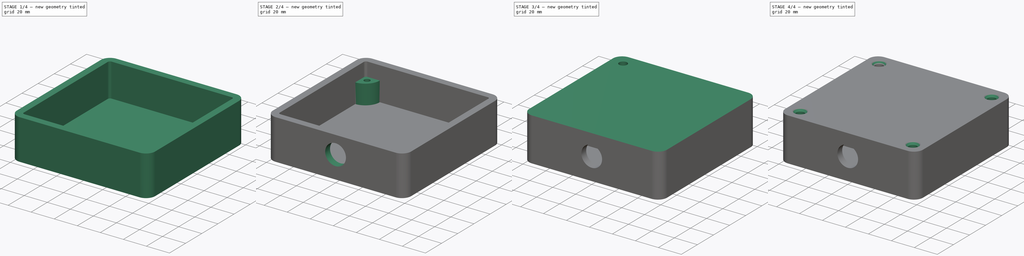
[diagram: build sequence overview — one tinted view per stage of 4, left to right]
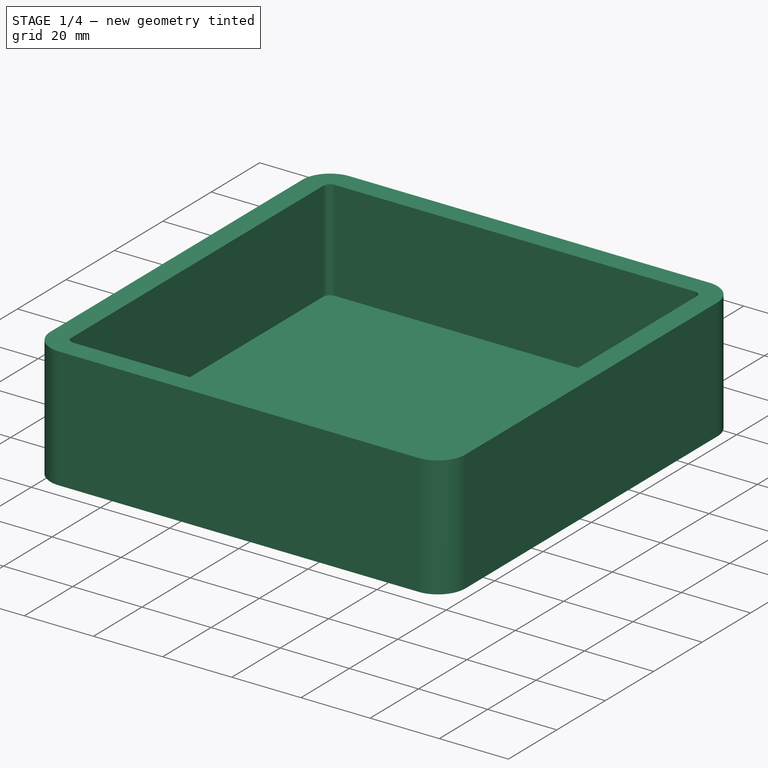
[diagram: stage 1 of 4 — iso view after this stage's code; geometry added in this stage tinted green]
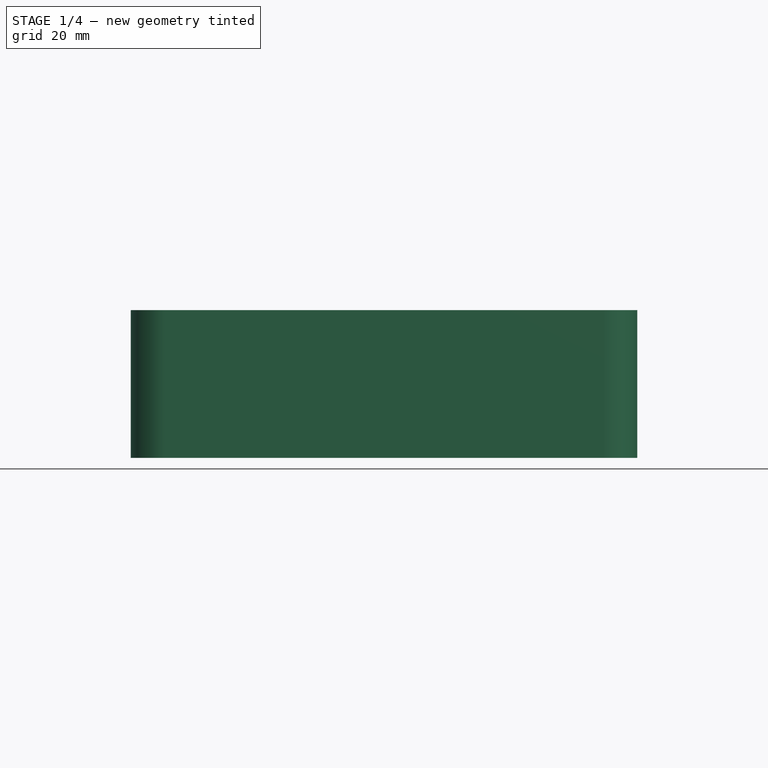
[diagram: stage 1 of 4 — front view after this stage's code; geometry added in this stage tinted green]
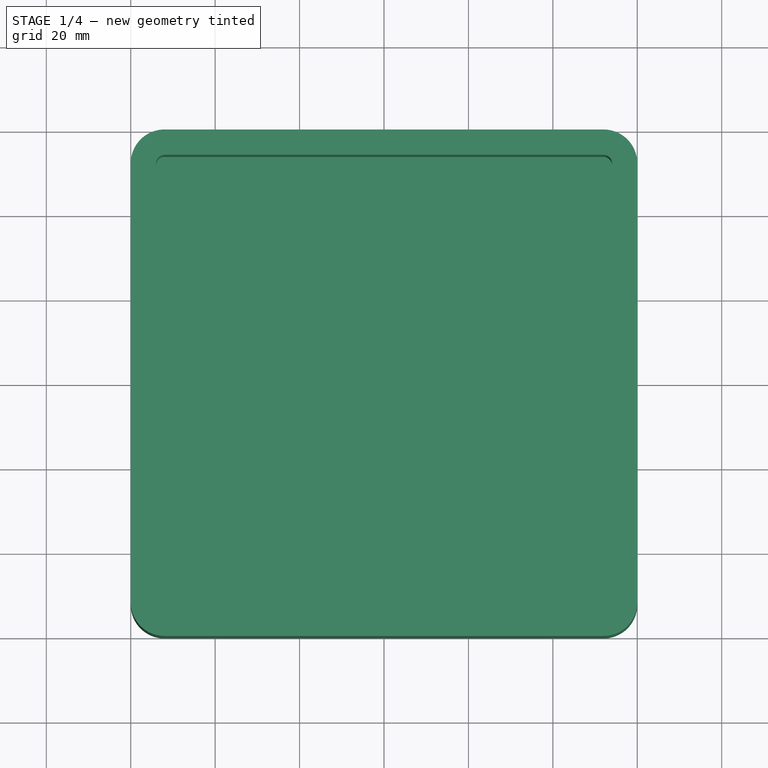
[diagram: stage 1 of 4 — top view after this stage's code; geometry added in this stage tinted green]
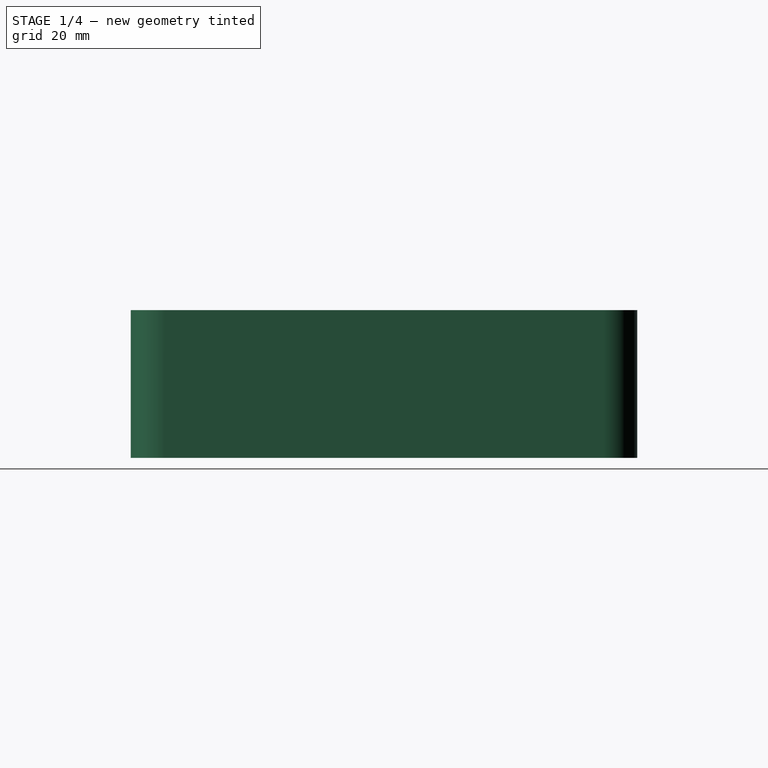
[diagram: stage 1 of 4 — right view after this stage's code; geometry added in this stage tinted green]
FCSTD DOCUMENT  (FreeCAD 0.19R24276 (Git))
Label: Container_tutorial_v2
License: All rights reserved
LicenseURL: http://en.wikipedia.org/wiki/All_rights_reserved
objects: Sketcher::SketchObject×8, PartDesign::Pad×4, PartDesign::Mirrored×4, PartDesign::Pocket×2, PartDesign::MultiTransform×2, PartDesign::Body×2, Spreadsheet::Sheet×1, PartDesign::Chamfer×1, PartDesign::Hole×1
note: 32 computed .brp shape members not serialized (recipe doc carries the construction recipe); baked Part::Feature solids carry a one-line shape summary decoded from their .brp

FEATURE [Sketcher::SketchObject] Sketch
  FullyConstrained = true
  MapMode = 5
  Support = -> [XY_Plane]
  expr: Constraints[18] = <<Parameters>>.outside_radius
  expr: Constraints[17] = <<Parameters>>.box_widht
  expr: Constraints[16] = <<Parameters>>.box_length
  sketch-geometry (8):
    g0: LineSegment StartX=-52 StartY=60 StartZ=0 EndX=52 EndY=60 EndZ=0
    g1: LineSegment StartX=60 StartY=52 StartZ=0 EndX=60 EndY=-52 EndZ=0
    g2: LineSegment StartX=52 StartY=-60 StartZ=0 EndX=-52 EndY=-60 EndZ=0
    g3: LineSegment StartX=-60 StartY=-52 StartZ=0 EndX=-60 EndY=52 EndZ=0
    g4: ArcOfCircle CenterX=-52 CenterY=52 CenterZ=0 NormalX=0 NormalY=0 NormalZ=1 AngleXU=0 Radius=8 StartAngle=1.5708 EndAngle=3.14159
    g5: ArcOfCircle CenterX=-52 CenterY=-52 CenterZ=0 NormalX=0 NormalY=0 NormalZ=1 AngleXU=0 Radius=8 StartAngle=3.14159 EndAngle=4.71239
    g6: ArcOfCircle CenterX=52 CenterY=-52 CenterZ=0 NormalX=0 NormalY=0 NormalZ=1 AngleXU=0 Radius=8 StartAngle=4.71239 EndAngle=6.28319
    g7: ArcOfCircle CenterX=52 CenterY=52 CenterZ=0 NormalX=0 NormalY=0 NormalZ=1 AngleXU=0 Radius=8 StartAngle=2.59e-14 EndAngle=1.5708
  constraints (19):
    c: Horizontal(g0)
    c: Horizontal(g2)
    c: Vertical(g1)
    c: Vertical(g3)
    c: Tangent(g0,g4) = 1.5708
    c: Tangent(g3,g4) = 1.5708
    c: Tangent(g3,g5) = 1.5708
    c: Tangent(g2,g5) = 1.5708
    c: Tangent(g1,g6) = 1.5708
    c: Tangent(g2,g6) = 1.5708
    c: Tangent(g0,g7) = 1.5708
    c: Tangent(g1,g7) = 1.5708
    c: Symmetric(g4,g6,g-1)
    c: Equal(g4,g5)
    c: Equal(g5,g7)
    c: Equal(g7,g6)
    c: DistanceX(g3,g1) = 120
    c: DistanceY(g2,g0) = 120
    c: Radius(g4) = 8
FEATURE [PartDesign::Pad] Pad
  Direction = (1,1,1)
  Length = 35
  Length2 = 100
  Profile = -> Sketch
  Type = 0
  expr: Length = <<Parameters>>.box_heigth
FEATURE [PartDesign::Body] Body001  label="Lid"
  Group = -> [Sketch005,Pad002,Sketch006,Pad003,Sketch007,Pocket001,MultiTransform001,Mirrored002,Mirrored003,Chamfer]
  Origin = -> Origin001
  Placement = pos=(0,0,50) rot=(0,0,1;0rad)
  Tip = -> Chamfer
FEATURE [PartDesign::Mirrored] Mirrored001
  MirrorPlane = -> Sketch002 [H_Axis]
FEATURE [PartDesign::Mirrored] Mirrored
  MirrorPlane = -> Sketch002 [V_Axis]
FEATURE [PartDesign::Pocket] Pocket
  BaseFeature = -> Pad
  Length = 29
  Length2 = 100
  Profile = -> Sketch001
  Type = 0
  expr: Length = <<Parameters>>.box_heigth - <<Parameters>>.box_wall_thickness
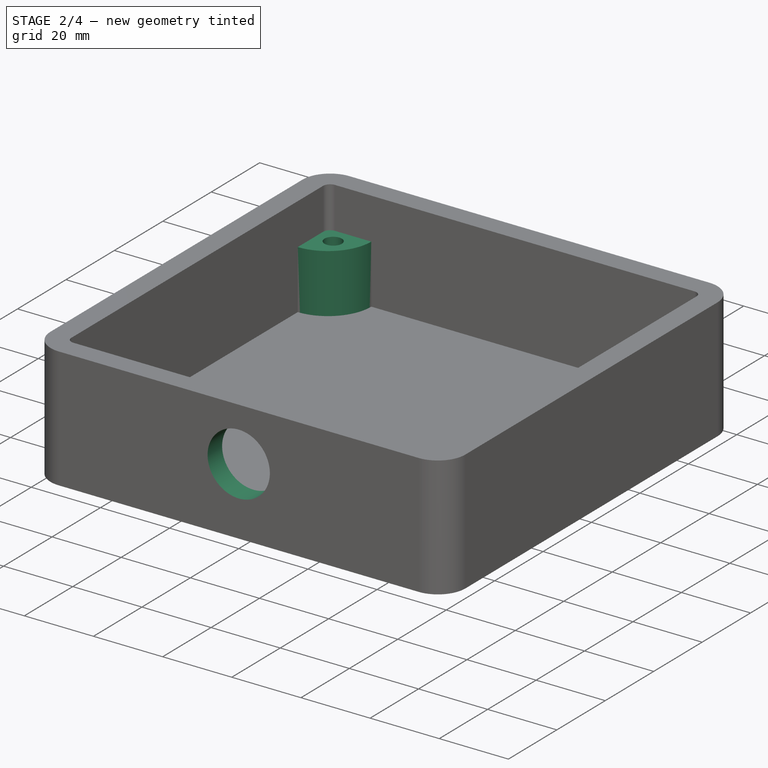
[diagram: stage 2 of 4 — iso view after this stage's code; geometry added in this stage tinted green]
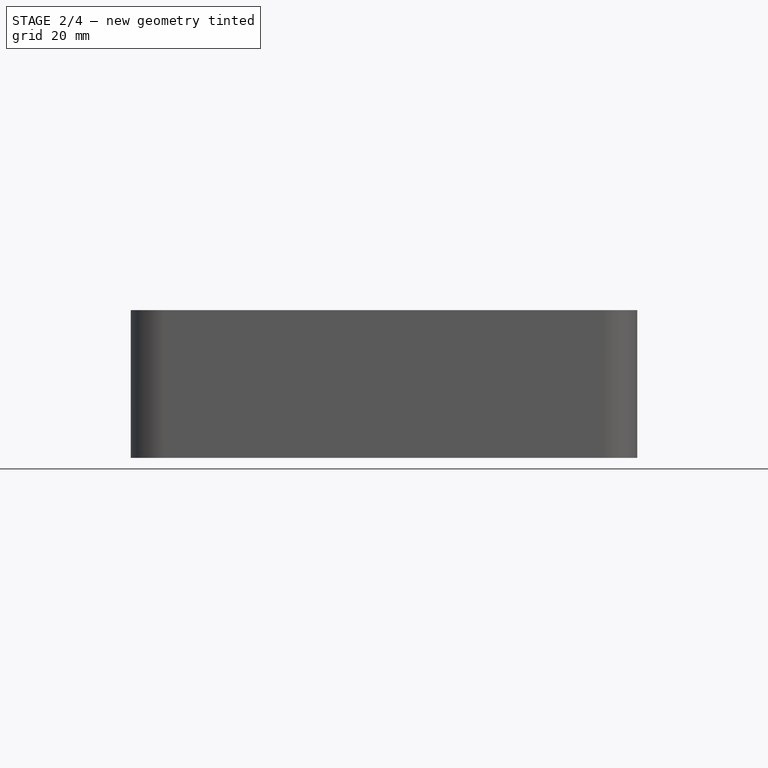
[diagram: stage 2 of 4 — front view after this stage's code; geometry added in this stage tinted green]
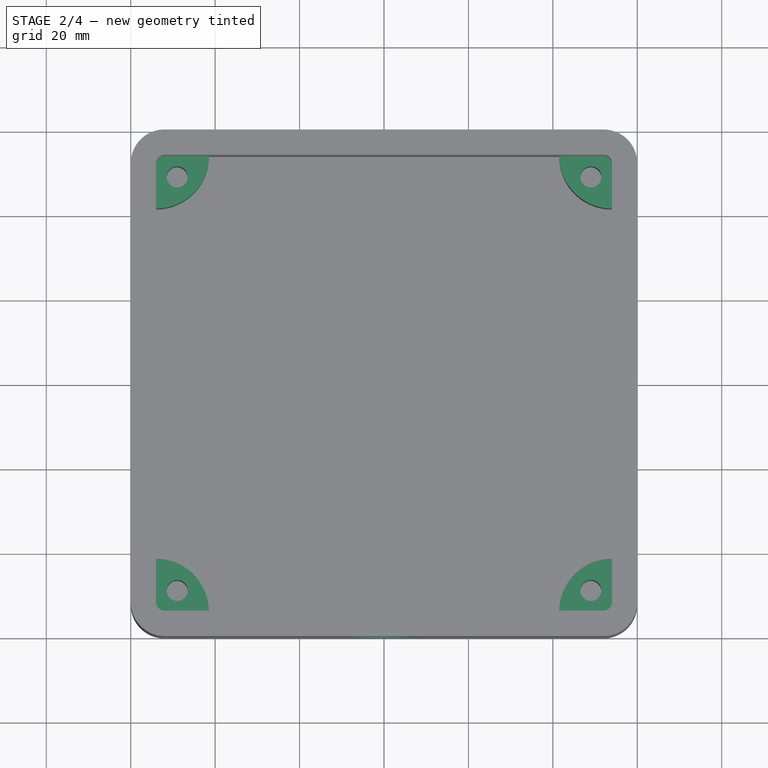
[diagram: stage 2 of 4 — top view after this stage's code; geometry added in this stage tinted green]
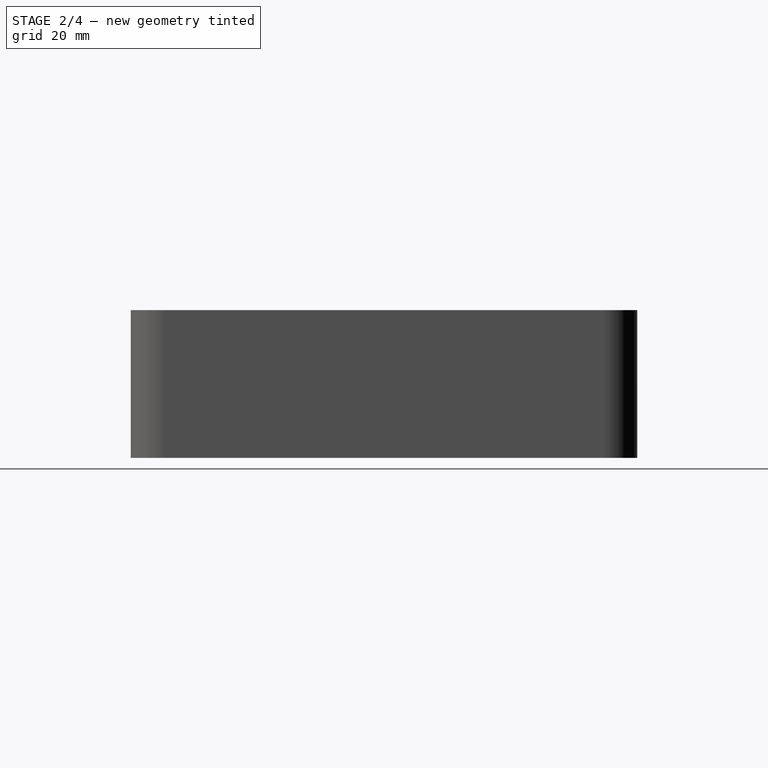
[diagram: stage 2 of 4 — right view after this stage's code; geometry added in this stage tinted green]
FEATURE [PartDesign::Pad] Pad001
  BaseFeature = -> Pocket
  Direction = (1,1,1)
  Length = 23
  Length2 = 100
  Profile = -> Sketch002
  Type = 0
  expr: Length = <<Parameters>>.lug_heigth
FEATURE [PartDesign::MultiTransform] MultiTransform
  BaseFeature = -> Pad001
  Originals = -> [Pad001]
  Transformations = -> [Mirrored,Mirrored001]
FEATURE [Sketcher::SketchObject] Sketch008
  FullyConstrained = true
  MapMode = 5
  Placement = pos=(0,-60,0) rot=(1,0,0;1.5708rad)
  Support = -> [MultiTransform]
  expr: Constraints[8] = <<Parameters>>.box_heigth
  expr: Constraints[9] = <<Parameters>>.box_length
  expr: Constraints[14] = <<Parameters>>.box_length / 2
  expr: Constraints[10] = <<Parameters>>.box_length / 2
  expr: Constraints[11] = <<Parameters>>.box_heigth
  expr: Constraints[12] = <<Parameters>>.hole_analog
  expr: Constraints[13] = 2 + <<Parameters>>.box_heigth / 2
  sketch-geometry (5):
    g0: LineSegment StartX=-60 StartY=35 StartZ=0 EndX=60 EndY=35 EndZ=0
    g1: LineSegment StartX=60 StartY=35 StartZ=0 EndX=60 EndY=0 EndZ=0
    g2: LineSegment StartX=60 StartY=0 StartZ=0 EndX=-60 EndY=0 EndZ=0
    g3: LineSegment StartX=-60 StartY=0 StartZ=0 EndX=-60 EndY=35 EndZ=0
    g4: Circle CenterX=-1.8e-15 CenterY=19.5 CenterZ=0 NormalX=0 NormalY=0 NormalZ=1 AngleXU=0 Radius=18
  constraints (15):
    c: Coincident(g0,g1)
    c: Coincident(g1,g2)
    c: Coincident(g2,g3)
    c: Coincident(g3,g0)
    c: Horizontal(g0)
    c: Horizontal(g2)
    c: Vertical(g1)
    c: Vertical(g3)
    c: DistanceY(g1,g0) = 35
    c: DistanceX(g2,g1) = 120
    c: DistanceX(g-1,g0) = 60
    c: DistanceY(g-1,g0) = 35
    c: Radius(g4) = 18
    c: DistanceY(g-1,g4) = 19.5
    c: DistanceX(g4,g1) = 60
FEATURE [Sketcher::SketchObject] Sketch009
  FullyConstrained = true
  MapMode = 5
  Placement = pos=(0,-60,0) rot=(1,0,0;1.5708rad)
  Support = -> [MultiTransform]
  expr: Constraints[12] = <<Parameters>>.box_length * 1 / 4
  expr: Constraints[11] = <<Parameters>>.box_heigth
  expr: Constraints[10] = <<Parameters>>.box_length / 2
  expr: Constraints[14] = <<Parameters>>.hole_tube
  expr: Constraints[9] = <<Parameters>>.box_length
  expr: Constraints[13] = 2 + <<Parameters>>.box_heigth / 2
  expr: Constraints[8] = <<Parameters>>.box_heigth
  sketch-geometry (5):
    g0: LineSegment StartX=-60 StartY=35 StartZ=0 EndX=60 EndY=35 EndZ=0
    g1: LineSegment StartX=60 StartY=35 StartZ=0 EndX=60 EndY=0 EndZ=0
    g2: LineSegment StartX=60 StartY=0 StartZ=0 EndX=-60 EndY=0 EndZ=0
    g3: LineSegment StartX=-60 StartY=0 StartZ=0 EndX=-60 EndY=35 EndZ=0
    g4: Circle CenterX=-30 CenterY=19.5 CenterZ=0 NormalX=0 NormalY=0 NormalZ=1 AngleXU=0 Radius=6
  constraints (15):
    c: Coincident(g0,g1)
    c: Coincident(g1,g2)
    c: Coincident(g2,g3)
    c: Coincident(g3,g0)
    c: Horizontal(g0)
    c: Horizontal(g2)
    c: Vertical(g1)
    c: Vertical(g3)
    c: DistanceY(g1,g0) = 35
    c: DistanceX(g2,g1) = 120
    c: DistanceX(g-1,g0) = 60
    c: DistanceY(g-1,g0) = 35
    c: DistanceX(g2,g4) = 30
    c: DistanceY(g2,g4) = 19.5
    c: Radius(g4) = 6
FEATURE [PartDesign::Hole] Hole002
  BaseFeature = -> MultiTransform
  Depth = 18
  DepthType = 0
  Diameter = 18
  DrillForDepth = false
  DrillPoint = 1
  DrillPointAngle = 118
  HoleCutCountersinkAngle = 90
  HoleCutCustomValues = false
  HoleCutDepth = 0
  HoleCutDiameter = 6.1
  HoleCutType = 0
  ModelActualThread = false
  Profile = -> Sketch008
  Tapered = false
  TaperedAngle = 90
  ThreadAngle = 0
  ThreadClass = 0
  ThreadCutOffInner = 0
  ThreadCutOffOuter = 0
  ThreadDirection = 0
  ThreadFit = 0
  ThreadPitch = 0
  ThreadSize = 0
  ThreadType = 0
  Threaded = false
  expr: Diameter = <<Parameters>>.hole_analog
  expr: Depth = <<Parameters>>.hole_analog
FEATURE [PartDesign::Body] Body  label="Box"
  Group = -> [Sketch,Pad,Sketch001,Pocket,Sketch002,Pad001,MultiTransform,Mirrored,Mirrored001,Sketch008,Sketch009,Hole002]
  Origin = -> Origin
  Tip = -> Hole002
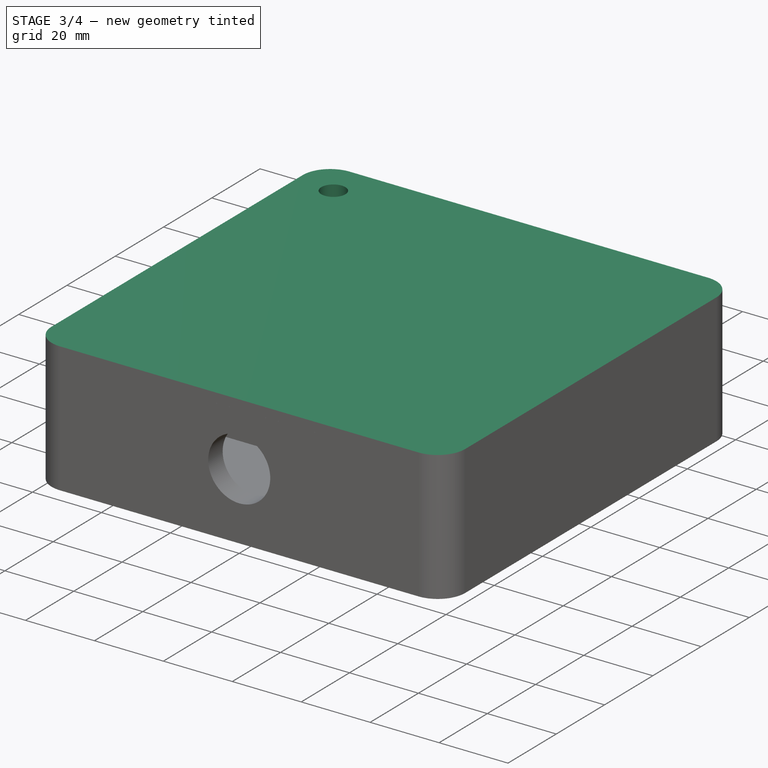
[diagram: stage 3 of 4 — iso view after this stage's code; geometry added in this stage tinted green]
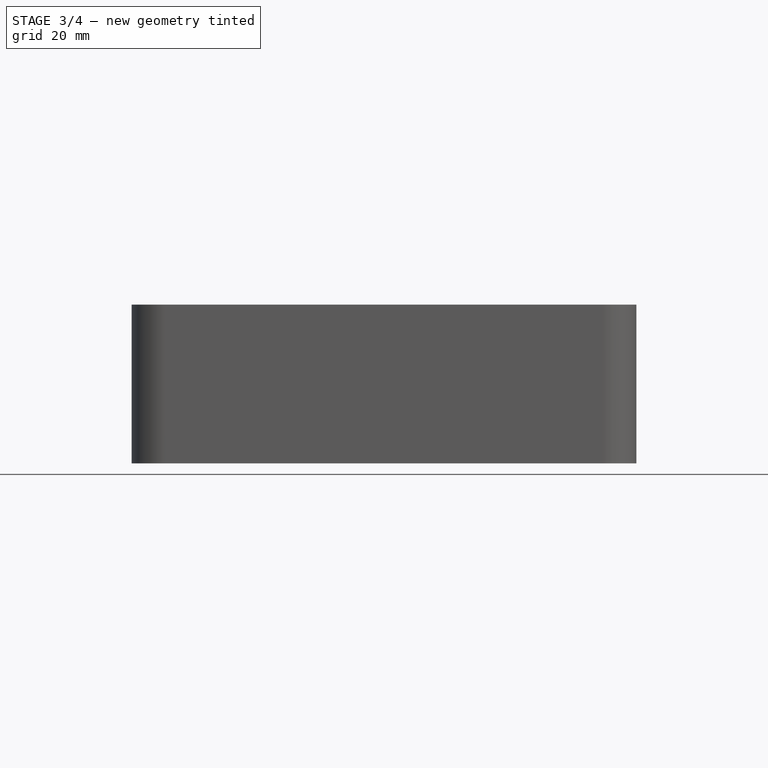
[diagram: stage 3 of 4 — front view after this stage's code; geometry added in this stage tinted green]
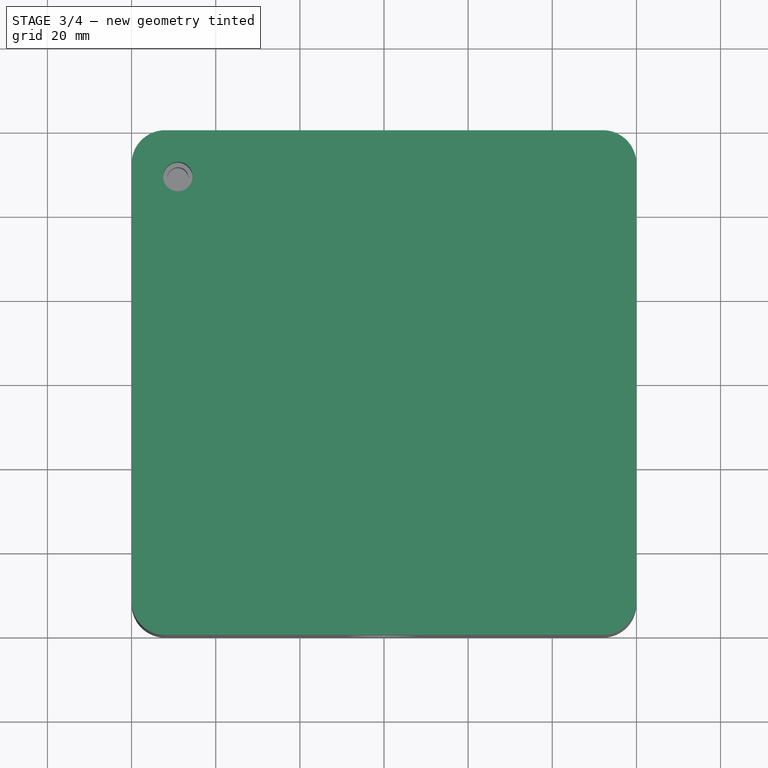
[diagram: stage 3 of 4 — top view after this stage's code; geometry added in this stage tinted green]
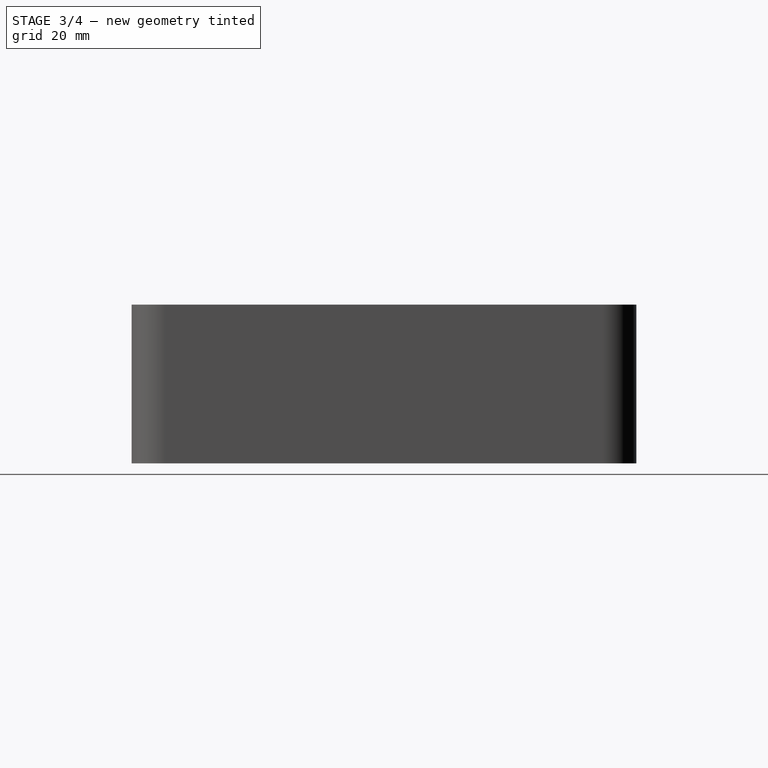
[diagram: stage 3 of 4 — right view after this stage's code; geometry added in this stage tinted green]
FEATURE [Spreadsheet::Sheet] Spreadsheet  label="Parameters"
  cells = A2=box_length; B2(box_length)=120; A3=box_widht; B3(box_widht)=120; A4=box_heigth; B4(box_heigth)=35; A5=outside_radius; B5(outside_radius)==B7 + 2; C5=Calculated; A6=inside_radius; B6(inside_radius)==B5 - B7; C6=Calculated; A7=box_wall_thickness; B7(box_wall_thickness)=6; A8=hole_dia; B8(hole_dia)=5; A9=lug_heigth; B9(lug_heigth)==B4 - B7 * 2; C9=Calculated; A10=lug_radius; B10(lug_radius)==B8 * 2.5; C10=Calculated; A11=hole_center_length; B11(hole_center_length)==B13 / 2 - B8; C11=Calculated; A12=hole_center_width; B12(hole_center_width)==B14 / 2 - B8; C12=Calculated; A13=box_inside_length; B13(box_inside_length)==B2 - B7 * 2; C13=Calculated; A14=box_inside_width; B14(box_inside_width)==B3 - B7 * 2; C14=Calculated; A15=lug_length; B15(lug_length)==B8 * 3; A16=lug_width; B16(lug_width)==B8 * 2; A18=clearance_sides; B18(clearance_sides)=0.3; A19=clearance_hole; B19(clearance_hole)==B8 + 2; A20=lid_heigth; B20(lid_heigth)==B4 / 4; A21=hole_analog; B21(hole_analog)=18; A22=hole_tube; B22(hole_tube)=6
FEATURE [Sketcher::SketchObject] Sketch001
  AttachmentOffset = pos=(0,0,35) rot=(0,0,1;0rad)
  FullyConstrained = true
  MapMode = 5
  Placement = pos=(0,0,35) rot=(0,0,1;0rad)
  Support = -> [XY_Plane]
  expr: Constraints[18] = <<Parameters>>.box_inside_width
  expr: Constraints[17] = <<Parameters>>.box_inside_length
  expr: Constraints[16] = <<Parameters>>.inside_radius
  sketch-geometry (8):
    g0: LineSegment StartX=-52 StartY=54 StartZ=0 EndX=52 EndY=54 EndZ=0
    g1: LineSegment StartX=54 StartY=52 StartZ=0 EndX=54 EndY=-52 EndZ=0
    g2: LineSegment StartX=52 StartY=-54 StartZ=0 EndX=-52 EndY=-54 EndZ=0
    g3: LineSegment StartX=-54 StartY=-52 StartZ=0 EndX=-54 EndY=52 EndZ=0
    g4: ArcOfCircle CenterX=-52 CenterY=52 CenterZ=0 NormalX=0 NormalY=0 NormalZ=1 AngleXU=0 Radius=2 StartAngle=1.5708 EndAngle=3.14159
    g5: ArcOfCircle CenterX=-52 CenterY=-52 CenterZ=0 NormalX=0 NormalY=0 NormalZ=1 AngleXU=0 Radius=2 StartAngle=3.14159 EndAngle=4.71239
    g6: ArcOfCircle CenterX=52 CenterY=-52 CenterZ=0 NormalX=0 NormalY=0 NormalZ=1 AngleXU=0 Radius=2 StartAngle=4.71239 EndAngle=6.28319
    g7: ArcOfCircle CenterX=52 CenterY=52 CenterZ=0 NormalX=0 NormalY=0 NormalZ=1 AngleXU=0 Radius=2 StartAngle=-1.2363e-12 EndAngle=1.5708
  constraints (19):
    c: Horizontal(g0)
    c: Horizontal(g2)
    c: Vertical(g1)
    c: Vertical(g3)
    c: Tangent(g0,g4) = 1.5708
    c: Tangent(g3,g4) = 1.5708
    c: Tangent(g3,g5) = 1.5708
    c: Tangent(g2,g5) = 1.5708
    c: Tangent(g2,g6) = 1.5708
    c: Tangent(g1,g6) = 1.5708
    c: Tangent(g0,g7) = 1.5708
    c: Tangent(g1,g7) = 1.5708
    c: Symmetric(g4,g6,g-1)
    c: Equal(g4,g7)
    c: Equal(g7,g5)
    c: Equal(g5,g6)
    c: Radius(g4) = 2
    c: DistanceX(g3,g1) = 108
    c: DistanceY(g2,g0) = 108
FEATURE [Sketcher::SketchObject] Sketch002
  FullyConstrained = true
  MapMode = 5
  Support = -> [XY_Plane]
  expr: Constraints[11] = <<Parameters>>.hole_center_width
  expr: Constraints[10] = <<Parameters>>.hole_center_length
  expr: Constraints[9] = <<Parameters>>.hole_dia
  expr: Constraints[8] = <<Parameters>>.hole_dia
  expr: Constraints[7] = <<Parameters>>.lug_radius
  expr: Constraints[6] = <<Parameters>>.hole_dia
  sketch-geometry (4):
    g0: LineSegment StartX=-54 StartY=54 StartZ=0 EndX=-41.5 EndY=54 EndZ=0
    g1: LineSegment StartX=-54 StartY=54 StartZ=0 EndX=-54 EndY=41.5 EndZ=0
    g2: ArcOfCircle CenterX=-54 CenterY=54 CenterZ=0 NormalX=0 NormalY=0 NormalZ=1 AngleXU=0 Radius=12.5 StartAngle=4.71239 EndAngle=6.28319
    g3: Circle CenterX=-49 CenterY=49 CenterZ=0 NormalX=0 NormalY=0 NormalZ=1 AngleXU=0 Radius=2.5
  constraints (12):
    c: Horizontal(g0)
    c: Coincident(g1,g0)
    c: Vertical(g1)
    c: Coincident(g2,g0)
    c: Coincident(g2,g0)
    c: Coincident(g2,g1)
    c: Diameter(g3) = 5
    c: Radius(g2) = 12.5
    c: DistanceX(g0,g3) = 5
    c: DistanceY(g3,g0) = 5
    c: DistanceX(g3,g-1) = 49
    c: DistanceY(g-1,g3) = 49
FEATURE [Sketcher::SketchObject] Sketch005  label="External Pad"
  AttachmentOffset = pos=(0,0,29) rot=(0,0,1;0rad)
  FullyConstrained = true
  MapMode = 5
  Placement = pos=(0,0,29) rot=(0,0,1;0rad)
  Support = -> [XY_Plane001]
  expr: Constraints[16] = <<Parameters>>.outside_radius
  expr: Constraints[17] = <<Parameters>>.box_widht
  expr: Constraints[18] = <<Parameters>>.box_length
  expr: .AttachmentOffset.Base.z = <<Parameters>>.box_heigth - <<Parameters>>.box_wall_thickness
  sketch-geometry (8):
    g0: LineSegment StartX=-52 StartY=60 StartZ=0 EndX=52 EndY=60 EndZ=0
    g1: LineSegment StartX=60 StartY=52 StartZ=0 EndX=60 EndY=-52 EndZ=0
    g2: LineSegment StartX=52 StartY=-60 StartZ=0 EndX=-52 EndY=-60 EndZ=0
    g3: LineSegment StartX=-60 StartY=-52 StartZ=0 EndX=-60 EndY=52 EndZ=0
    g4: ArcOfCircle CenterX=-52 CenterY=52 CenterZ=0 NormalX=0 NormalY=0 NormalZ=1 AngleXU=0 Radius=8 StartAngle=1.5708 EndAngle=3.14159
    g5: ArcOfCircle CenterX=-52 CenterY=-52 CenterZ=0 NormalX=0 NormalY=0 NormalZ=1 AngleXU=0 Radius=8 StartAngle=3.14159 EndAngle=4.71239
    g6: ArcOfCircle CenterX=52 CenterY=-52 CenterZ=0 NormalX=0 NormalY=0 NormalZ=1 AngleXU=0 Radius=8 StartAngle=4.71239 EndAngle=6.28319
    g7: ArcOfCircle CenterX=52 CenterY=52 CenterZ=0 NormalX=0 NormalY=0 NormalZ=1 AngleXU=0 Radius=8 StartAngle=2.61e-14 EndAngle=1.5708
  constraints (19):
    c: Horizontal(g0)
    c: Horizontal(g2)
    c: Vertical(g1)
    c: Vertical(g3)
    c: Tangent(g0,g4) = 1.5708
    c: Tangent(g3,g4) = 1.5708
    c: Tangent(g3,g5) = 1.5708
    c: Tangent(g2,g5) = 1.5708
    c: Tangent(g2,g6) = 1.5708
    c: Tangent(g1,g6) = 1.5708
    c: Tangent(g1,g7) = 1.5708
    c: Tangent(g0,g7) = 1.5708
    c: Symmetric(g4,g6,g-1)
    c: Equal(g4,g5)
    c: Equal(g5,g7)
    c: Equal(g7,g6)
    c: Radius(g4) = 8
    c: DistanceY(g2,g0) = 120
    c: DistanceX(g3,g1) = 120
FEATURE [PartDesign::Pad] Pad002  label="External Pad001"
  Direction = (1,1,1)
  Length = 8.75
  Length2 = 100
  Profile = -> Sketch005
  Type = 0
  expr: Length = <<Parameters>>.lid_heigth
FEATURE [Sketcher::SketchObject] Sketch006  label="Inside Pad001"
  AttachmentOffset = pos=(0,0,29) rot=(0,0,1;0rad)
  FullyConstrained = true
  MapMode = 5
  Placement = pos=(0,0,29) rot=(0,0,1;0rad)
  Support = -> [XY_Plane001]
  expr: Constraints[16] = <<Parameters>>.inside_radius
  expr: .AttachmentOffset.Base.z = <<Parameters>>.box_heigth - <<Parameters>>.box_wall_thickness
  expr: Constraints[17] = <<Parameters>>.box_inside_width - <<Parameters>>.clearance_sides * 2
  expr: Constraints[18] = <<Parameters>>.box_inside_length - <<Parameters>>.clearance_sides * 2
  sketch-geometry (8):
    g0: LineSegment StartX=-51.7 StartY=53.7 StartZ=0 EndX=51.7 EndY=53.7 EndZ=0
    g1: LineSegment StartX=53.7 StartY=51.7 StartZ=0 EndX=53.7 EndY=-51.7 EndZ=0
    g2: LineSegment StartX=51.7 StartY=-53.7 StartZ=0 EndX=-51.7 EndY=-53.7 EndZ=0
    g3: LineSegment StartX=-53.7 StartY=-51.7 StartZ=0 EndX=-53.7 EndY=51.7 EndZ=0
    g4: ArcOfCircle CenterX=-51.7 CenterY=51.7 CenterZ=0 NormalX=0 NormalY=0 NormalZ=1 AngleXU=0 Radius=2 StartAngle=1.5708 EndAngle=3.14159
    g5: ArcOfCircle CenterX=-51.7 CenterY=-51.7 CenterZ=0 NormalX=0 NormalY=0 NormalZ=1 AngleXU=0 Radius=2 StartAngle=3.14159 EndAngle=4.71239
    g6: ArcOfCircle CenterX=51.7 CenterY=-51.7 CenterZ=0 NormalX=0 NormalY=0 NormalZ=1 AngleXU=0 Radius=2 StartAngle=4.71239 EndAngle=6.28319
    g7: ArcOfCircle CenterX=51.7 CenterY=51.7 CenterZ=0 NormalX=0 NormalY=0 NormalZ=1 AngleXU=0 Radius=2 StartAngle=-1.2363e-12 EndAngle=1.5708
  constraints (19):
    c: Horizontal(g0)
    c: Horizontal(g2)
    c: Vertical(g1)
    c: Vertical(g3)
    c: Tangent(g0,g4) = 1.5708
    c: Tangent(g3,g4) = 1.5708
    c: Tangent(g3,g5) = 1.5708
    c: Tangent(g2,g5) = 1.5708
    c: Tangent(g2,g6) = 1.5708
    c: Tangent(g1,g6) = 1.5708
    c: Tangent(g1,g7) = 1.5708
    c: Tangent(g0,g7) = 1.5708
    c: Symmetric(g4,g6,g-1)
    c: Equal(g4,g5)
    c: Equal(g5,g6)
    c: Equal(g6,g7)
    c: Radius(g4) = 2
    c: DistanceY(g2,g0) = 107.4
    c: DistanceX(g3,g1) = 107.4
FEATURE [PartDesign::Pad] Pad003  label="Inside Pad"
  BaseFeature = -> Pad002
  Direction = (1,1,1)
  Length = 5.7
  Length2 = 100
  Profile = -> Sketch006
  Reversed = true
  Type = 0
  expr: Length = <<Parameters>>.box_wall_thickness - Spreadsheet.clearance_sides
FEATURE [Sketcher::SketchObject] Sketch007  label="Holes001"
  FullyConstrained = true
  MapMode = 5
  Support = -> [XY_Plane001]
  expr: Constraints[0] = <<Parameters>>.clearance_hole
  expr: Constraints[1] = <<Parameters>>.hole_center_length
  expr: Constraints[2] = <<Parameters>>.hole_center_width
  sketch-geometry (1):
    g0: Circle CenterX=-49 CenterY=49 CenterZ=0 NormalX=0 NormalY=0 NormalZ=1 AngleXU=0 Radius=3.5
  constraints (3):
    c: Diameter(g0) = 7
    c: DistanceX(g0,g-1) = 49
    c: DistanceY(g-1,g0) = 49
FEATURE [PartDesign::Pocket] Pocket001  label="Holes"
  BaseFeature = -> Pad003
  Length = 5
  Length2 = 100
  Profile = -> Sketch007
  Reversed = true
  Type = 1
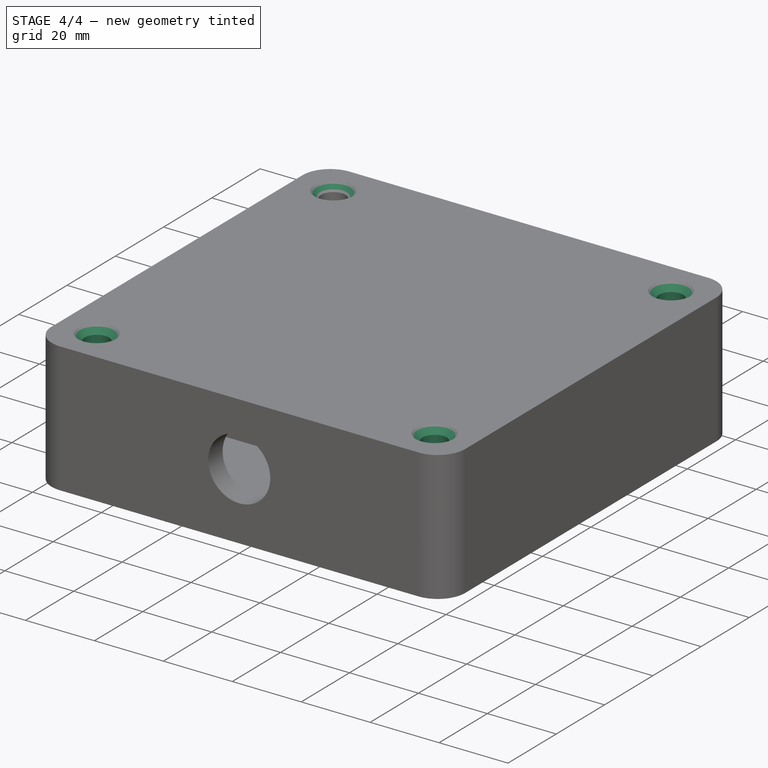
[diagram: stage 4 of 4 — iso view after this stage's code; geometry added in this stage tinted green]
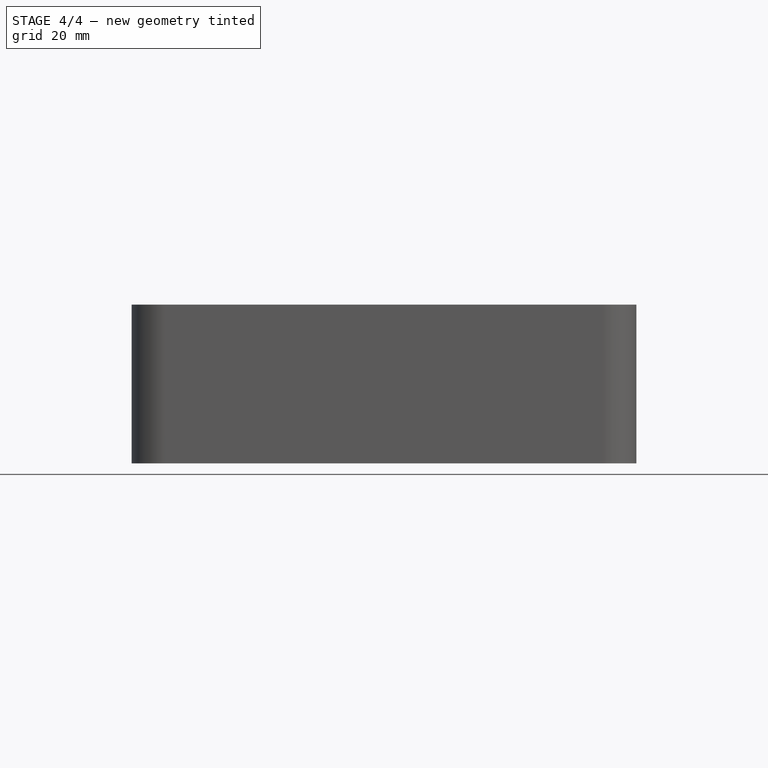
[diagram: stage 4 of 4 — front view after this stage's code; geometry added in this stage tinted green]
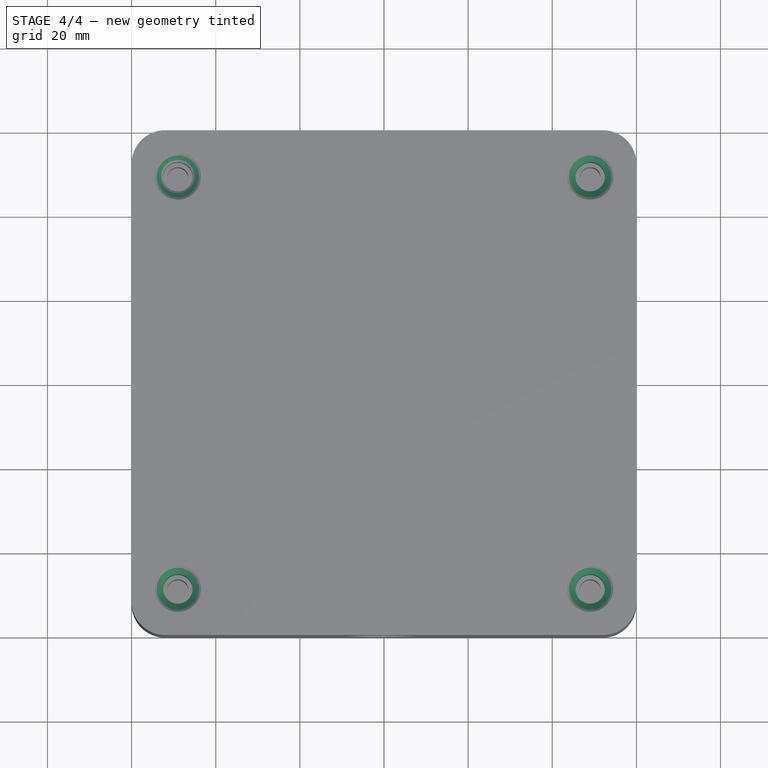
[diagram: stage 4 of 4 — top view after this stage's code; geometry added in this stage tinted green]
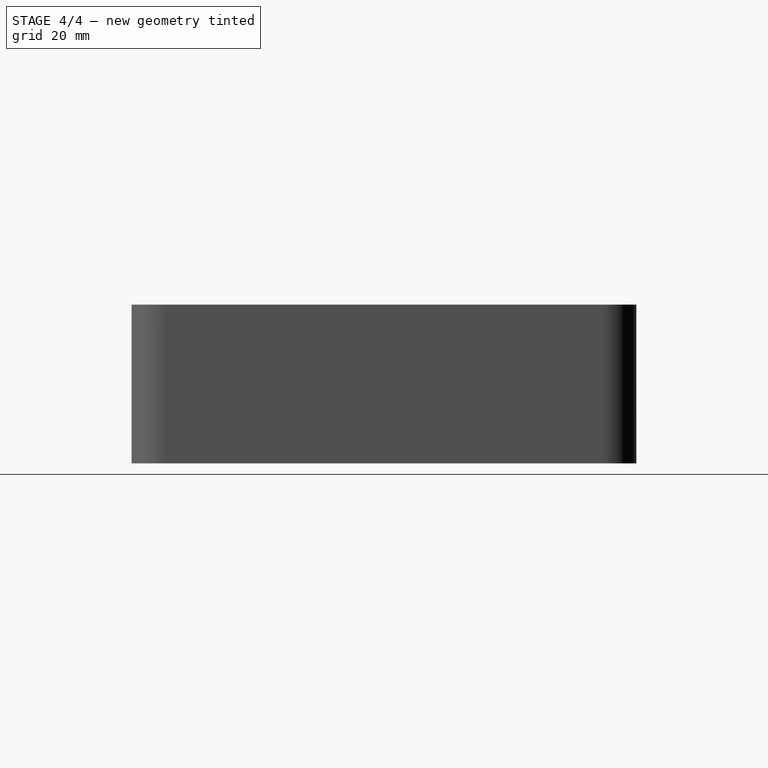
[diagram: stage 4 of 4 — right view after this stage's code; geometry added in this stage tinted green]
FEATURE [PartDesign::Mirrored] Mirrored002
  MirrorPlane = -> Sketch007 [V_Axis]
FEATURE [PartDesign::Mirrored] Mirrored003
  MirrorPlane = -> Sketch007 [H_Axis]
FEATURE [PartDesign::MultiTransform] MultiTransform001
  BaseFeature = -> Pocket001
  Originals = -> [Pocket001]
  Transformations = -> [Mirrored002,Mirrored003]
FEATURE [PartDesign::Chamfer] Chamfer
  Angle = 45
  Base = -> MultiTransform001 [Edge32,Edge30,Edge29,Edge31]
  BaseFeature = -> MultiTransform001
  ChamferType = 0
  FlipDirection = false
  Size = 2
  Size2 = 1
  SupportTransform = false
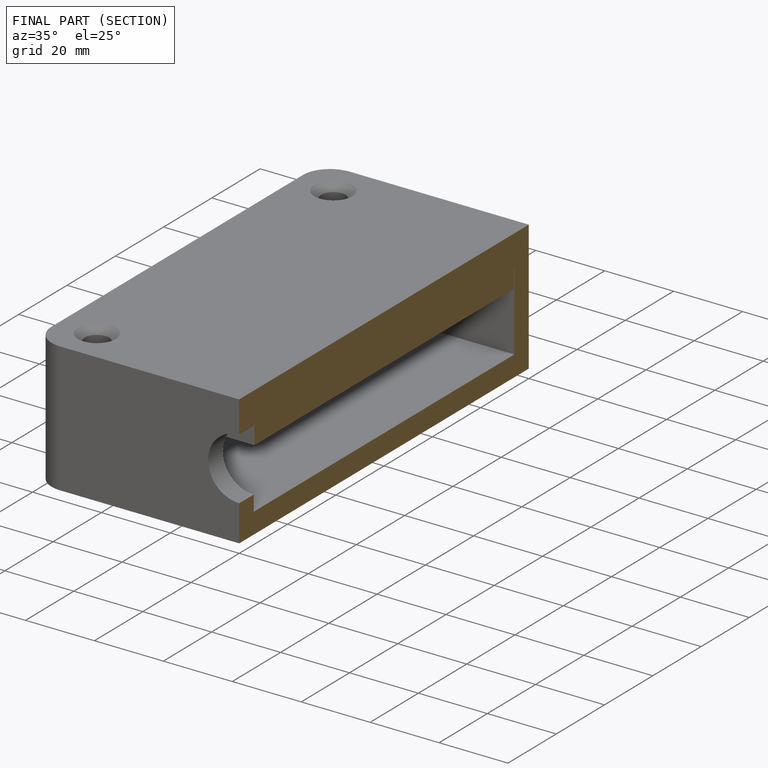
[diagram: finished part — half-section view (interior)]
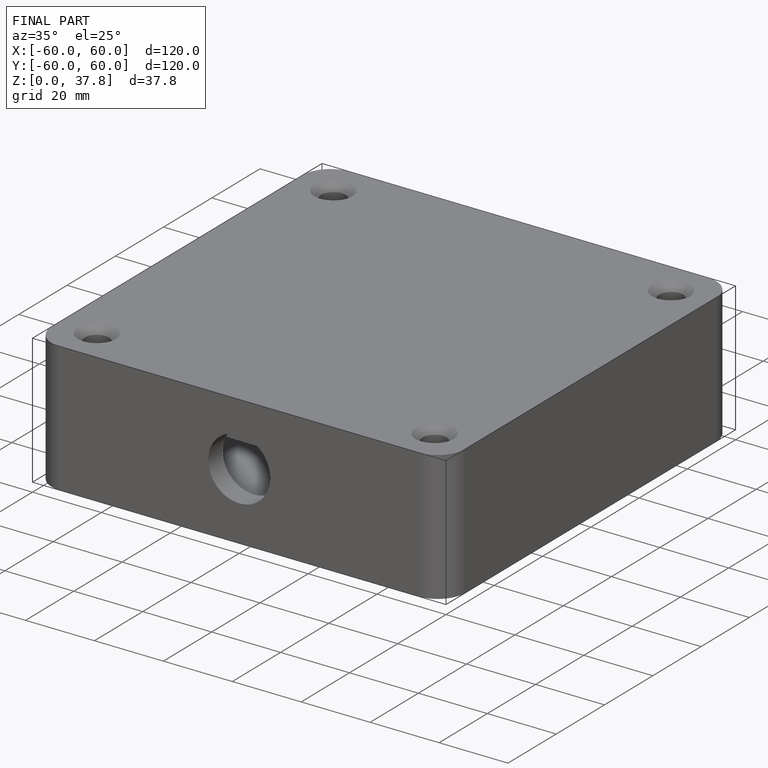
[diagram: finished part — iso view with bounding-box wireframe]
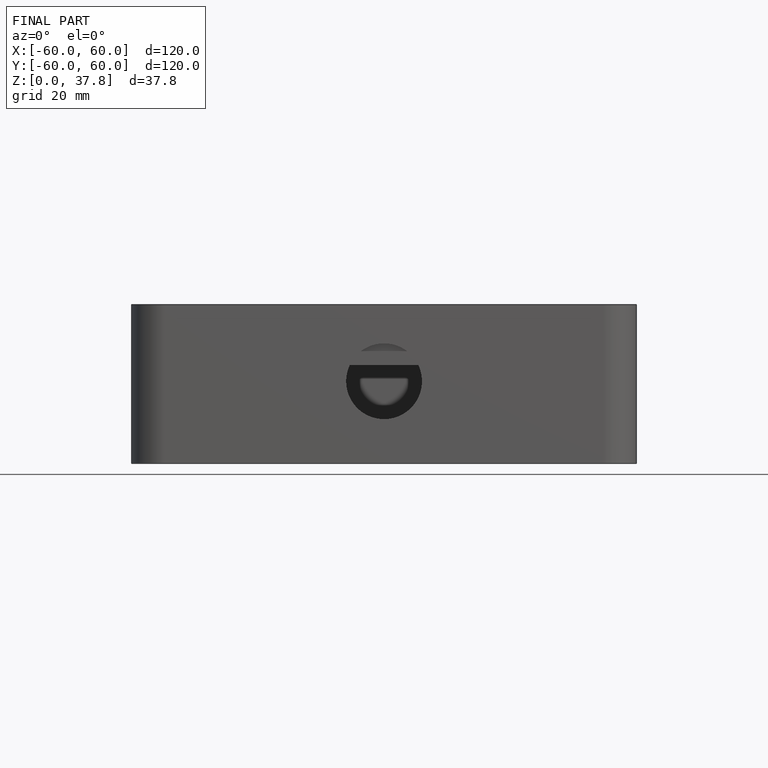
[diagram: finished part — front view with bounding-box wireframe]
